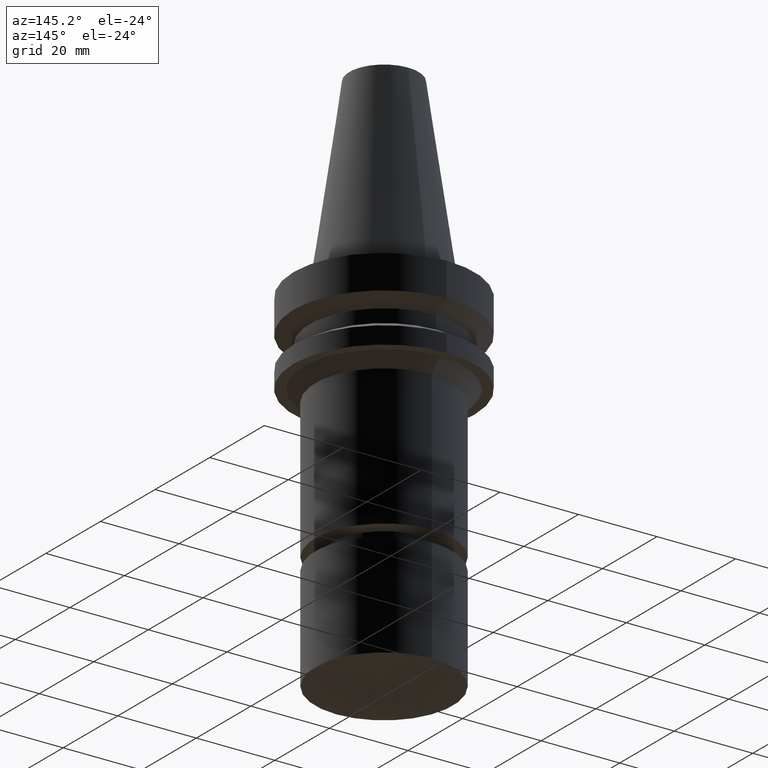
[diagram: clean part render]
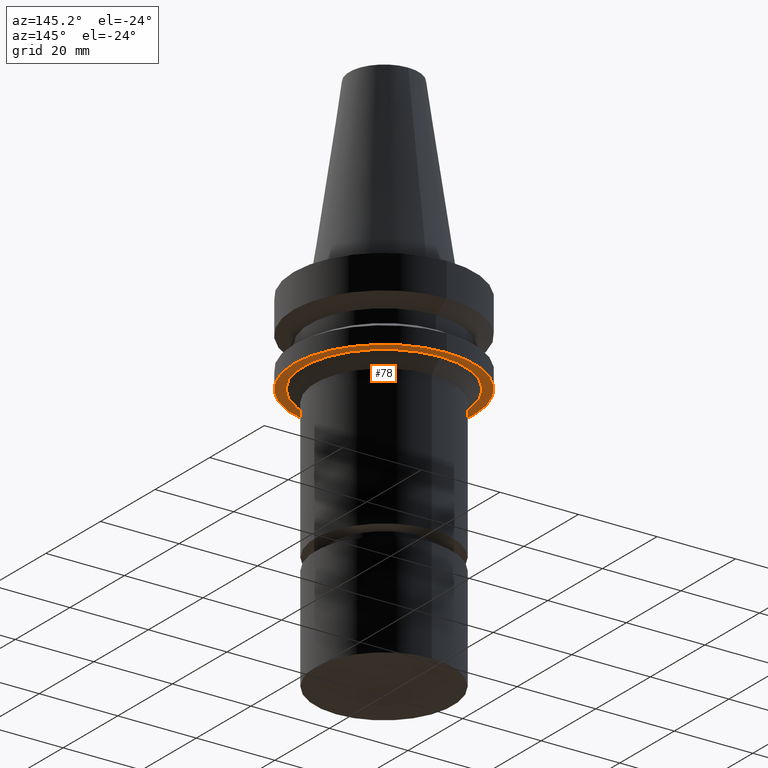
[diagram: same view with one face highlighted and labeled with its STEP entity id]
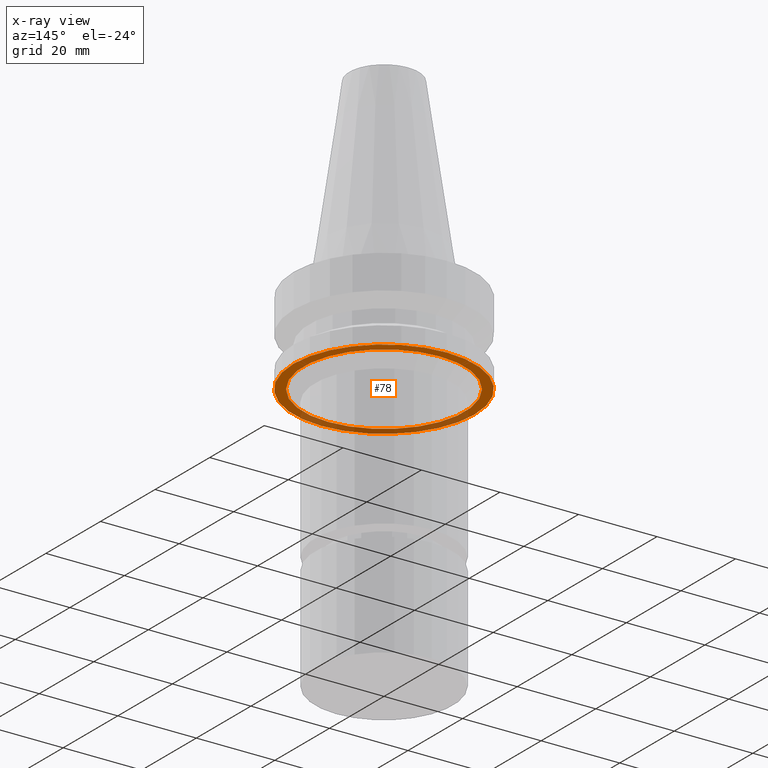
[diagram: x-ray of the same camera — body ghosted, the highlighted face saturated]
A machine part, auxiliary view. The second image highlights one B-rep face of the part: STEP entity #78.
The next image is the same camera in x-ray: the body ghosted, the highlighted face saturated — about 30% of this face is hidden behind the body in this view.
In plain terms, the highlighted planar face has unit normal (0, 0, -1).
Its self-contained STEP definition (entity closure, byte-faithful):
#78=ADVANCED_FACE('Unnamed[1]',(#205,#206),#207,.T.);
#128=EDGE_CURVE('Unnamed[1]',#283,#283,#284,.T.);
#161=EDGE_CURVE('Unnamed[1]',#335,#335,#336,.T.);
#205=FACE_BOUND('',#382,.T.);
#206=FACE_OUTER_BOUND('',#383,.T.);
#207=PLANE('',#384);
#283=VERTEX_POINT('',#478);
#284=CIRCLE('',#479,20.4999999999968);
#335=VERTEX_POINT('',#544);
#336=CIRCLE('',#545,23.0);
#382=EDGE_LOOP('',(#584));
#383=EDGE_LOOP('',(#585));
#384=AXIS2_PLACEMENT_3D('',#586,#587,#588);
#478=CARTESIAN_POINT('',(1.34711147906209E-015,20.4999999999968,-22.0));
#479=AXIS2_PLACEMENT_3D('',#672,#673,#674);
#544=CARTESIAN_POINT('',(1.34711147906209E-015,23.0,-22.0));
#545=AXIS2_PLACEMENT_3D('',#729,#730,#731);
#584=ORIENTED_EDGE('',*,*,#128,.F.);
#585=ORIENTED_EDGE('',*,*,#161,.T.);
#586=CARTESIAN_POINT('',(1.34711147906209E-015,21.7499999999984,-22.0));
#587=DIRECTION('',(6.12323399573677E-017,1.22464679914735E-016,-1.0));
#588=DIRECTION('',(-1.23259516440783E-032,1.0,1.22464679914735E-016));
#672=CARTESIAN_POINT('',(1.34711147906209E-015,2.69422295812418E-015,-22.0));
#673=DIRECTION('',(6.12323399573677E-017,1.22464679914804E-016,-1.0));
#674=DIRECTION('',(-1.23259516440802E-032,1.0,1.22464679914804E-016));
#729=CARTESIAN_POINT('',(1.34711147906209E-015,2.69422295812418E-015,-22.0));
#730=DIRECTION('',(6.12323399573677E-017,1.22464679914716E-016,-1.0));
#731=DIRECTION('',(-1.23259516440783E-032,1.0,1.22464679914716E-016));